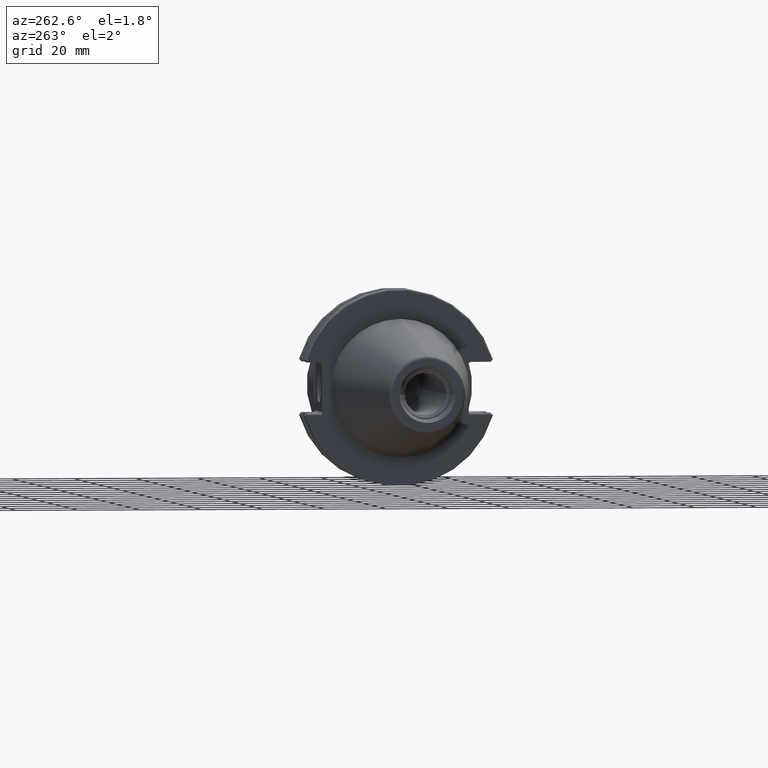
[diagram: clean part render]
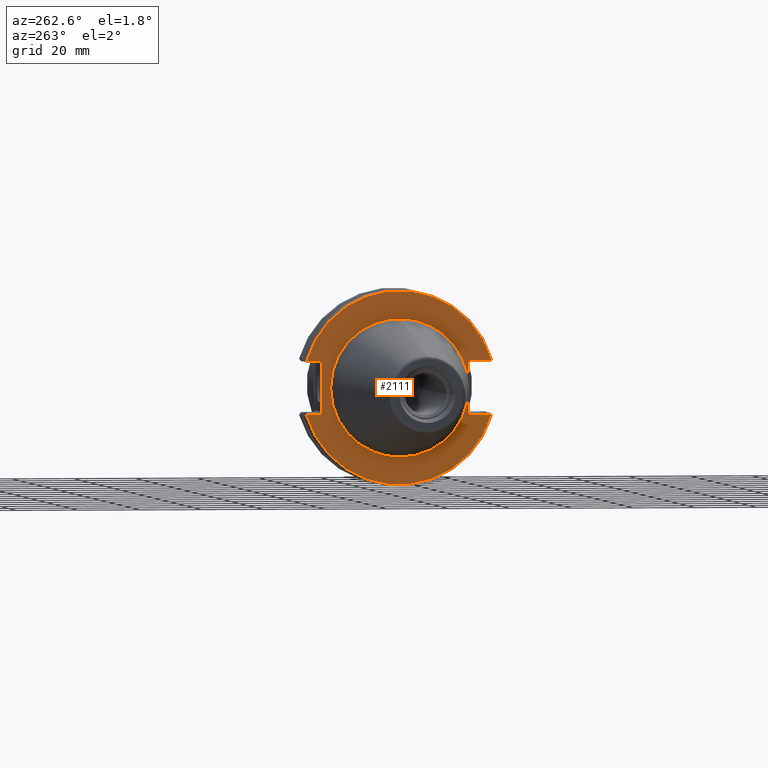
[diagram: same view with one face highlighted and labeled with its STEP entity id]
A machine part, auxiliary view. The second image highlights one B-rep face of the part: STEP entity #2111.
In plain terms, the highlighted planar face has unit normal (1, 0, 0).
Its self-contained STEP definition (entity closure, byte-faithful):
#116=CARTESIAN_POINT('',(3.175E0,0.E0,0.E0));
#117=DIRECTION('',(1.E0,0.E0,0.E0));
#118=DIRECTION('',(0.E0,1.E0,0.E0));
#119=AXIS2_PLACEMENT_3D('',#116,#117,#118);
#121=CARTESIAN_POINT('',(3.175E0,0.E0,0.E0));
#122=DIRECTION('',(1.E0,0.E0,0.E0));
#123=DIRECTION('',(0.E0,-1.E0,0.E0));
#124=AXIS2_PLACEMENT_3D('',#121,#122,#123);
#126=DIRECTION('',(-4.416490716681E-7,-9.999999999998E-1,-4.416327437506E-7));
#127=VECTOR('',#126,5.017433816154E0);
#128=CARTESIAN_POINT('',(3.175002215945E0,3.001743381615E1,8.690002215863E0));
#129=LINE('',#128,#127);
#130=DIRECTION('',(2.987481982108E-7,-9.999999999999E-1,2.987371537468E-7));
#131=VECTOR('',#130,7.417433816239E0);
#132=CARTESIAN_POINT('',(3.175E0,-2.26E1,8.69E0));
#133=LINE('',#132,#131);
#134=DIRECTION('',(-2.987481980911E-7,9.999999999999E-1,2.987371530284E-7));
#135=VECTOR('',#134,7.417433816238E0);
#136=CARTESIAN_POINT('',(3.175002215945E0,-3.001743381624E1,-8.690002215863E0));
#137=LINE('',#136,#135);
#138=DIRECTION('',(4.416490717585E-7,9.999999999998E-1,-4.416327437526E-7));
#139=VECTOR('',#138,5.017433816133E0);
#140=CARTESIAN_POINT('',(3.175E0,2.5E1,-8.69E0));
#141=LINE('',#140,#139);
#168=DIRECTION('',(0.E0,0.E0,-1.E0));
#169=VECTOR('',#168,1.738E1);
#170=CARTESIAN_POINT('',(3.175E0,2.5E1,8.69E0));
#171=LINE('',#170,#169);
#944=DIRECTION('',(0.E0,0.E0,1.E0));
#945=VECTOR('',#944,1.738E1);
#946=CARTESIAN_POINT('',(3.175E0,-2.26E1,-8.69E0));
#947=LINE('',#946,#945);
#1070=CARTESIAN_POINT('',(3.175E0,0.E0,0.E0));
#1071=DIRECTION('',(-1.E0,0.E0,0.E0));
#1072=DIRECTION('',(0.E0,9.605579196518E-1,-2.780799938762E-1));
#1073=AXIS2_PLACEMENT_3D('',#1070,#1071,#1072);
#1142=CARTESIAN_POINT('',(3.175E0,0.E0,0.E0));
#1143=DIRECTION('',(-1.E0,0.E0,0.E0));
#1144=DIRECTION('',(0.E0,-9.605579196529E-1,2.780799938725E-1));
#1145=AXIS2_PLACEMENT_3D('',#1142,#1143,#1144);
#1628=CARTESIAN_POINT('',(3.175E0,2.22E1,0.E0));
#1629=CARTESIAN_POINT('',(3.175E0,-2.22E1,0.E0));
#1630=VERTEX_POINT('',#1628);
#1631=VERTEX_POINT('',#1629);
#1684=CARTESIAN_POINT('',(3.175002215945E0,3.001743381615E1,8.690002215863E0));
#1685=CARTESIAN_POINT('',(3.175E0,2.5E1,8.69E0));
#1686=VERTEX_POINT('',#1684);
#1687=VERTEX_POINT('',#1685);
#1692=CARTESIAN_POINT('',(3.175E0,2.5E1,-8.69E0));
#1693=CARTESIAN_POINT('',(3.175002215945E0,3.001743381613E1,-8.690002215863E0));
#1694=VERTEX_POINT('',#1692);
#1695=VERTEX_POINT('',#1693);
#1700=CARTESIAN_POINT('',(3.175E0,-2.26E1,8.69E0));
#1701=CARTESIAN_POINT('',(3.175002215945E0,-3.001743381624E1,8.690002215863E0));
#1702=VERTEX_POINT('',#1700);
#1703=VERTEX_POINT('',#1701);
#1708=CARTESIAN_POINT('',(3.175002215945E0,-3.001743381624E1,
-8.690002215863E0));
#1709=CARTESIAN_POINT('',(3.175E0,-2.26E1,-8.69E0));
#1710=VERTEX_POINT('',#1708);
#1711=VERTEX_POINT('',#1709);
#2084=CARTESIAN_POINT('',(3.175E0,0.E0,0.E0));
#2085=DIRECTION('',(1.E0,0.E0,0.E0));
#2086=DIRECTION('',(0.E0,0.E0,1.E0));
#2087=AXIS2_PLACEMENT_3D('',#2084,#2085,#2086);
#2088=PLANE('',#2087);
#2090=ORIENTED_EDGE('',*,*,#2089,.F.);
#2092=ORIENTED_EDGE('',*,*,#2091,.F.);
#2094=ORIENTED_EDGE('',*,*,#2093,.F.);
#2096=ORIENTED_EDGE('',*,*,#2095,.F.);
#2098=ORIENTED_EDGE('',*,*,#2097,.F.);
#2100=ORIENTED_EDGE('',*,*,#2099,.F.);
#2102=ORIENTED_EDGE('',*,*,#2101,.F.);
#2104=ORIENTED_EDGE('',*,*,#2103,.F.);
#2105=EDGE_LOOP('',(#2090,#2092,#2094,#2096,#2098,#2100,#2102,#2104));
#2106=FACE_OUTER_BOUND('',#2105,.F.);
#2107=ORIENTED_EDGE('',*,*,#2037,.F.);
#2108=ORIENTED_EDGE('',*,*,#2052,.F.);
#2109=EDGE_LOOP('',(#2107,#2108));
#2110=FACE_BOUND('',#2109,.F.);
#2111=ADVANCED_FACE('',(#2106,#2110),#2088,.F.);
#120=CIRCLE('',#119,2.22E1);
#125=CIRCLE('',#124,2.22E1);
#1074=CIRCLE('',#1073,3.125E1);
#1146=CIRCLE('',#1145,3.125E1);
#2037=EDGE_CURVE('',#1630,#1631,#120,.T.);
#2052=EDGE_CURVE('',#1631,#1630,#125,.T.);
#2089=EDGE_CURVE('',#1686,#1687,#129,.T.);
#2091=EDGE_CURVE('',#1703,#1686,#1146,.T.);
#2093=EDGE_CURVE('',#1702,#1703,#133,.T.);
#2095=EDGE_CURVE('',#1711,#1702,#947,.T.);
#2097=EDGE_CURVE('',#1710,#1711,#137,.T.);
#2099=EDGE_CURVE('',#1695,#1710,#1074,.T.);
#2101=EDGE_CURVE('',#1694,#1695,#141,.T.);
#2103=EDGE_CURVE('',#1687,#1694,#171,.T.);